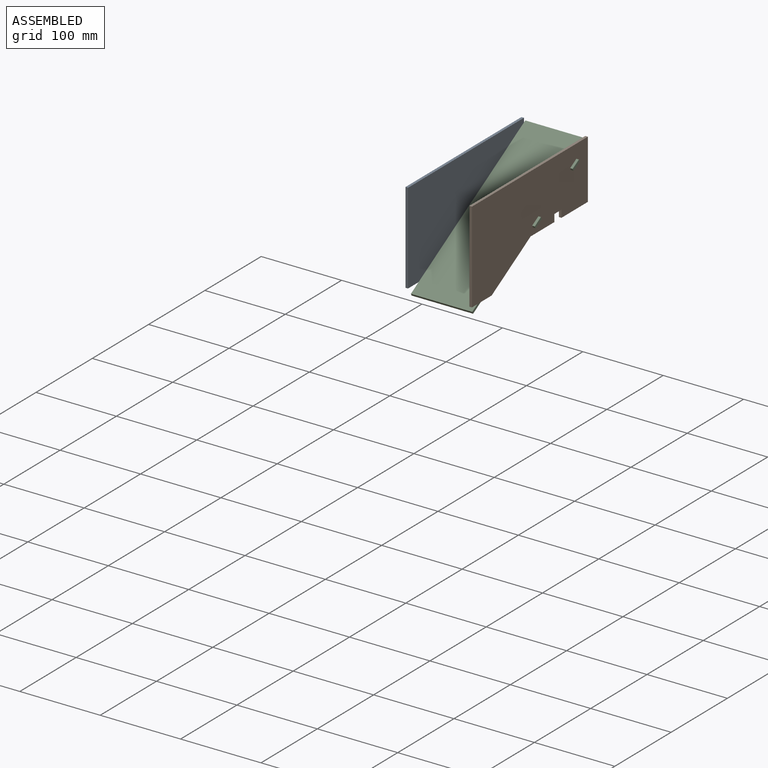
[diagram: assembled view]
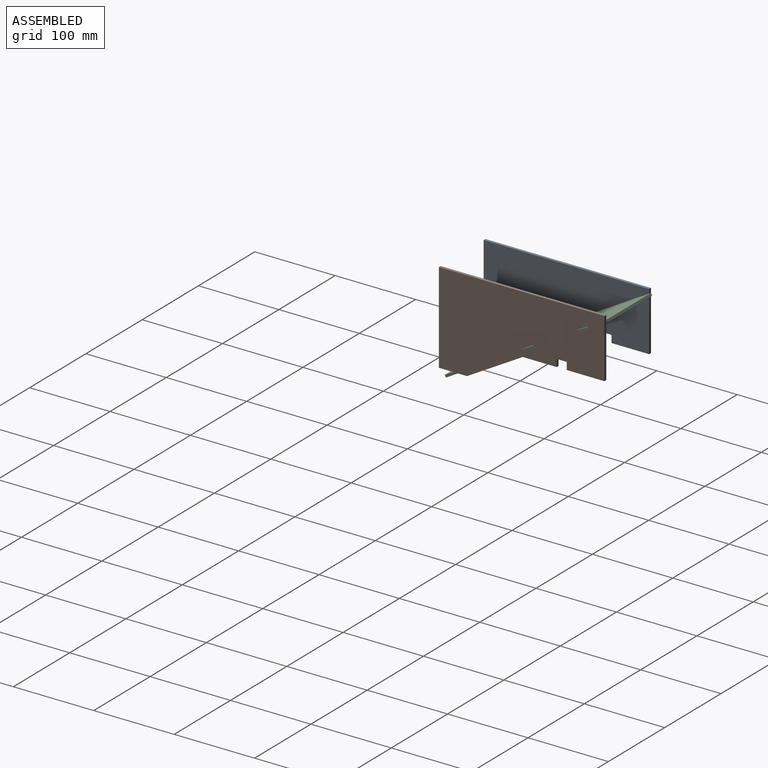
[diagram: assembled view, second angle]
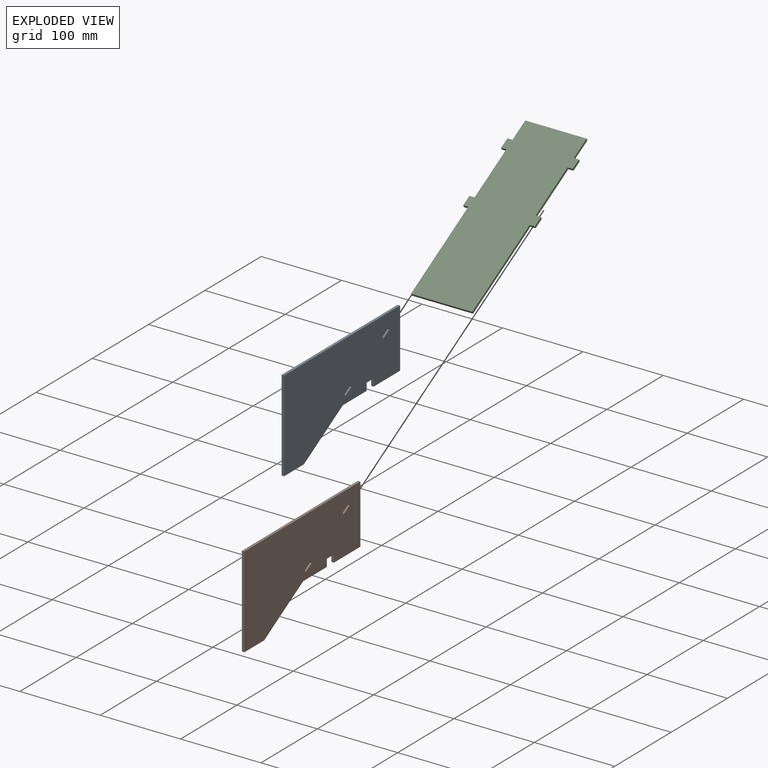
[diagram: exploded view]
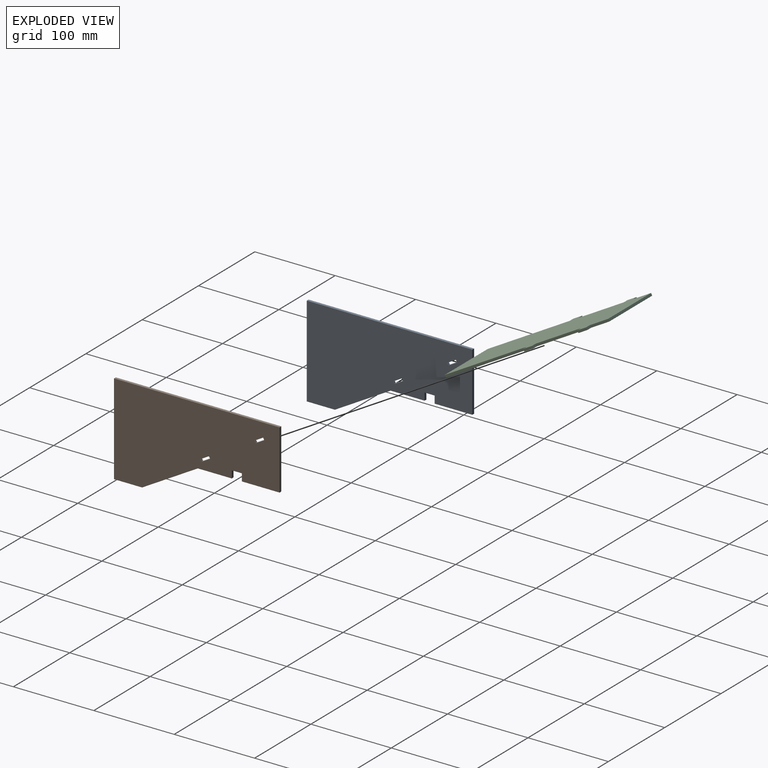
[diagram: exploded view, second angle]
ASSEMBLY  parts=3 mates=2
PART A: 20 faces, bbox 113.3x3.2x205.9 mm
  f0: plane 3.18x2.59mm, normal (0.5,0,0.87), area 9.5mm2, adj f15,f16,f17,f18
  f1: plane 10.86x6.27mm, normal (0.87,0,-0.5), area 39.8mm2, adj f2,f4,f16,f18
  f2: plane 3.18x2.59mm, normal (-0.5,0,-0.87), area 9.5mm2, adj f1,f3,f16,f18
  f3: plane 11x6.35mm, normal (-0.87,0,0.5), area 40.3mm2, adj f2,f4,f16,f18
  f4: plane 3.18x2.51mm, normal (0.55,0,0.84), area 9.5mm2, adj f1,f3,f16,f18
  f5: plane 9.14x3.18mm, normal (0,0,1), area 29mm2, adj f6,f14,f16,f18
  f6: plane 12.5x3.18mm, normal (1,0,0), area 39.7mm2, adj f5,f7,f16,f18
  f7: plane 9.14x3.18mm, normal (0,0,-1), area 29mm2, adj f6,f8,f16,f18
  f8: plane 42.21x3.18mm, normal (1,0,0), area 134mm2, adj f7,f9,f16,f18
  f9: plane 69.29x40mm, normal (0.87,0,-0.5), area 254mm2, adj f8,f10,f16,f18
  f10: plane 35x3.18mm, normal (1,0,0), area 111.1mm2, adj f9,f11,f16,f18
  f11: plane 113.27x3.18mm, normal (0,0,1), area 359.6mm2, adj f10,f12,f16,f18
  f12: plane 205.89x3.18mm, normal (-1,0,0), area 653.7mm2, adj f11,f13,f16,f18
  f13: plane 73.27x3.18mm, normal (0,0,-1), area 232.6mm2, adj f12,f14,f16,f18
  f14: plane 46.89x3.18mm, normal (1,0,0), area 148.9mm2, adj f5,f13,f16,f18
  f15: plane 11x6.35mm, normal (-0.87,0,0.5), area 40.3mm2, adj f0,f16,f18,f19
  f16: plane 205.89x113.27mm, normal (0,1,0), area 17680.8mm2, adj f0,f1,f2,f3,f4,f5,f6,f7
  f17: plane 11.15x6.43mm, normal (0.87,0,-0.5), area 40.9mm2, adj f0,f16,f18,f19
  f18: plane 205.89x113.27mm, normal (0,-1,0), area 17680.8mm2, adj f0,f1,f2,f3,f4,f5,f6,f7
  f19: plane 3.18x2.51mm, normal (-0.55,0,-0.84), area 9.5mm2, adj f15,f16,f17,f18
PART B: same geometry as A
PART C: 22 faces, bbox 89x3x234.6 mm
  f0: plane 6.46x3mm, normal (0,0,-1), area 19.4mm2, adj f1,f17,f18,f19
  f1: plane 12.83x3mm, normal (-1,0,0), area 38.5mm2, adj f0,f2,f17,f19
  f2: plane 6.36x3mm, normal (0,0,1), area 19.1mm2, adj f1,f3,f17,f19
  f3: plane 26.24x3mm, normal (-1,0,0), area 78.7mm2, adj f2,f4,f17,f19
  f4: plane 76.3x3mm, normal (0,0,1), area 228.9mm2, adj f3,f5,f17,f19
  f5: plane 26.24x3mm, normal (1,0,0), area 78.7mm2, adj f4,f6,f17,f19
  f6: plane 6.36x3mm, normal (0,0,1), area 19.1mm2, adj f5,f7,f17,f19
  f7: plane 12.83x3mm, normal (1,0,0), area 38.5mm2, adj f6,f8,f17,f19
  f8: plane 6.46x3mm, normal (0,0,-1), area 19.4mm2, adj f7,f9,f17,f19
  f9: plane 65.01x3mm, normal (1,0,0), area 195mm2, adj f8,f10,f17,f19
  f10: plane 6.46x3mm, normal (0,0,1), area 19.4mm2, adj f9,f11,f17,f19
  f11: plane 12.82x3mm, normal (1,0,0), area 38.5mm2, adj f10,f12,f17,f19
  f12: plane 6.36x3mm, normal (0,0,-1), area 19.1mm2, adj f11,f13,f17,f19
  f13: plane 117.68x3mm, normal (1,0,0), area 353mm2, adj f12,f14,f17,f19
  f14: plane 76.3x3mm, normal (0,0,-1), area 228.9mm2, adj f13,f15,f17,f19
  f15: plane 117.68x3mm, normal (-1,0,0), area 353mm2, adj f14,f16,f17,f19
  f16: plane 6.36x3mm, normal (0,0,-1), area 19.1mm2, adj f15,f17,f19,f20
  f17: plane 234.58x89.02mm, normal (0,-1,0), area 18211.5mm2, adj f0,f1,f2,f3,f4,f5,f6,f7
  f18: plane 65.01x3mm, normal (-1,0,0), area 195mm2, adj f0,f17,f19,f21
  f19: plane 234.58x89.02mm, normal (0,1,0), area 18211.5mm2, adj f0,f1,f2,f3,f4,f5,f6,f7
  f20: plane 12.82x3mm, normal (-1,0,0), area 38.5mm2, adj f16,f17,f19,f21
  f21: plane 6.46x3mm, normal (0,0,1), area 19.4mm2, adj f17,f18,f19,f20
PLACE A rot(axis=(0.58,0.58,-0.58),120deg) t=(-244.5,-7.74,9.35)mm
PLACE B rot(axis=(0.58,0.58,-0.58),120deg) t=(-165.03,-7.74,9.35)mm
PLACE C rot(axis=(-1,0,0),60deg) t=(-99.02,30.18,35.35)mm
MATE fastened C.f6 <-> B.f0  axis (0,0.87,0.5) through (-165.03,91.36,70.67)mm
MATE fastened C.f2 <-> A.f0  axis (0,0.87,0.5) through (-241.33,91.36,70.67)mm
